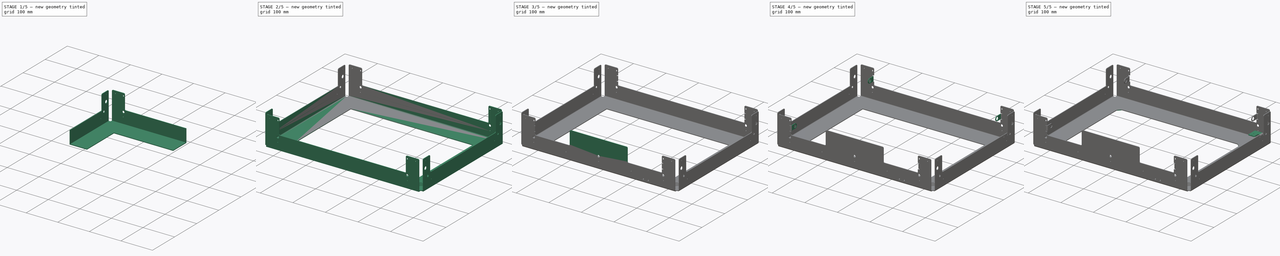
[diagram: build sequence overview — one tinted view per stage of 5, left to right]
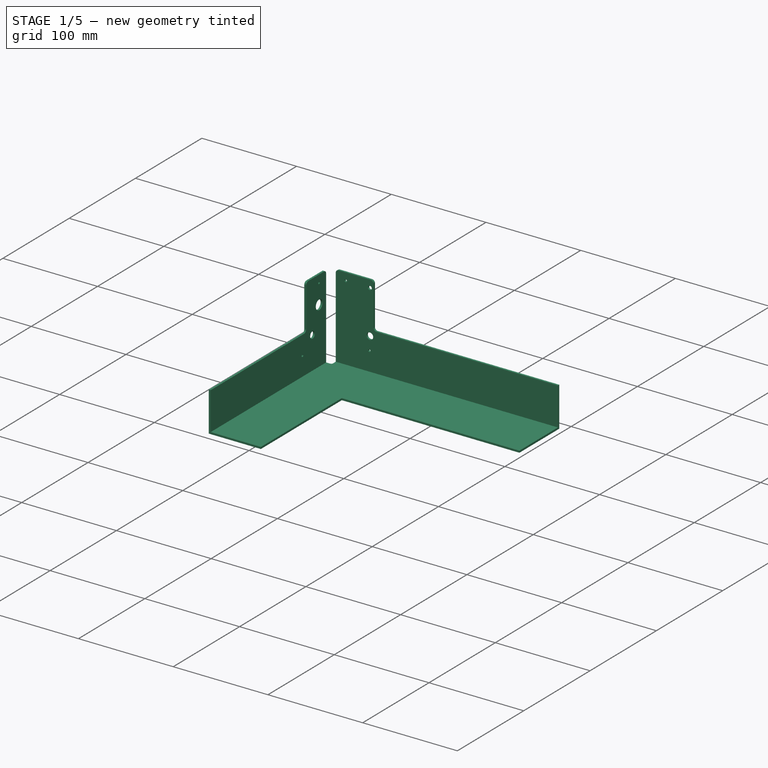
[diagram: stage 1 of 5 — iso view after this stage's code; geometry added in this stage tinted green]
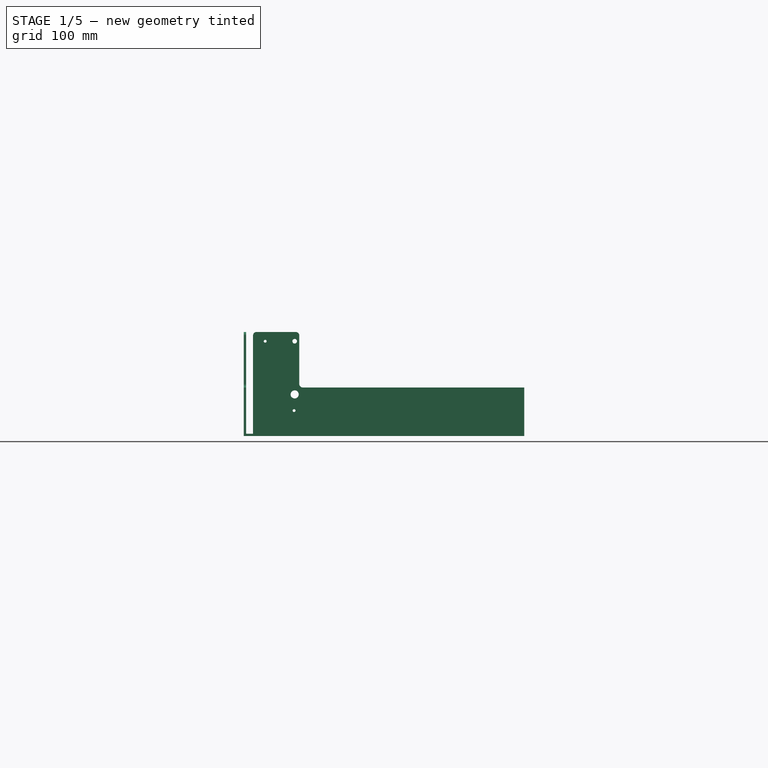
[diagram: stage 1 of 5 — front view after this stage's code; geometry added in this stage tinted green]
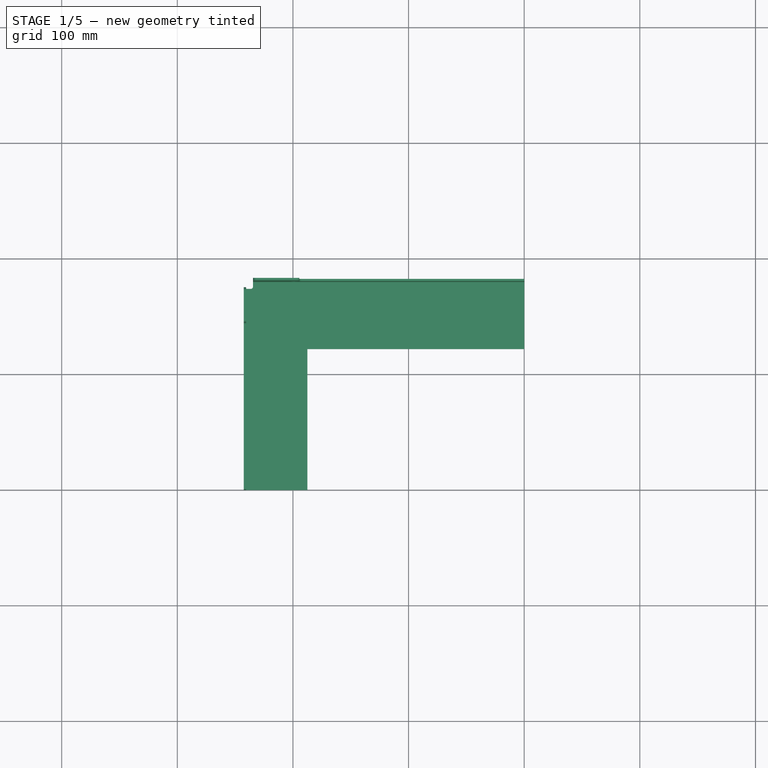
[diagram: stage 1 of 5 — top view after this stage's code; geometry added in this stage tinted green]
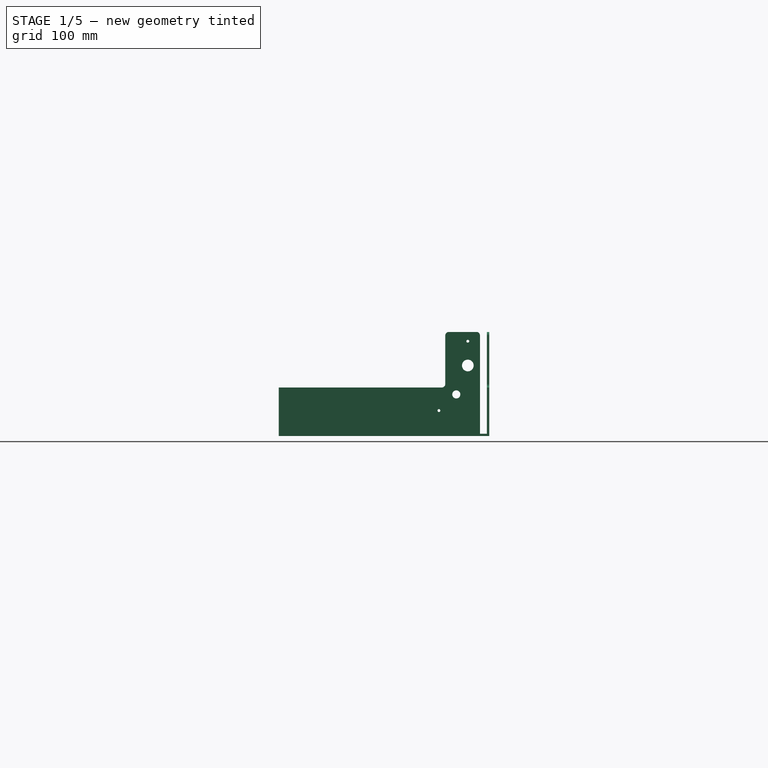
[diagram: stage 1 of 5 — right view after this stage's code; geometry added in this stage tinted green]
FCSTD DOCUMENT  (FreeCAD 0.14R3310 (Git))
Label: SOPORTE SUPERIOR COLUMNAS
License: CC-BY 3.0
LicenseURL: http://creativecommons.org/licenses/by/3.0/
objects: Sketcher::SketchObject×13, PartDesign::Fillet×11, PartDesign::Pad×7, PartDesign::Pocket×6, Part::Mirroring×2, Part::MultiFuse×2, PartDesign::Chamfer×1
note: 55 computed .brp shape members not serialized (recipe doc carries the construction recipe); baked Part::Feature solids carry a one-line shape summary decoded from their .brp

FEATURE [Sketcher::SketchObject] Sketch
  sketch-geometry (8):
    g0: LineSegment StartX=-242.5 StartY=182 StartZ=0 EndX=0 EndY=182 EndZ=0
    g1: LineSegment [constr] StartX=0 StartY=182 StartZ=0 EndX=0 EndY=0 EndZ=0
    g2: LineSegment [constr] StartX=0 StartY=0 StartZ=0 EndX=-242.5 EndY=0 EndZ=0
    g3: LineSegment StartX=-242.5 StartY=0 StartZ=0 EndX=-242.5 EndY=182 EndZ=0
    g4: LineSegment StartX=-187.5 StartY=122 StartZ=0 EndX=0 EndY=122 EndZ=0
    g5: LineSegment StartX=-187.5 StartY=122 StartZ=0 EndX=-187.5 EndY=0 EndZ=0
    g6: LineSegment StartX=0 StartY=122 StartZ=0 EndX=0 EndY=182 EndZ=0
    g7: LineSegment StartX=-187.5 StartY=0 StartZ=0 EndX=-242.5 EndY=0 EndZ=0
  constraints (22):
    c: Coincident(g0,g1)
    c: Coincident(g1,g2)
    c: Coincident(g2,g3)
    c: Coincident(g3,g0)
    c: Horizontal(g0)
    c: Horizontal(g2)
    c: Vertical(g1)
    c: Vertical(g3)
    c: Coincident(g1,g-1)
    c: Distance(g0) = 242.5
    c: DistanceY(g3) = 182
    c: PointOnObject(g4,g1)
    c: Horizontal(g4)
    c: Coincident(g5,g4)
    c: PointOnObject(g5,g2)
    c: Vertical(g5)
    c: DistanceX(g4) = 187.5
    c: DistanceY(g5) = -122
    c: Coincident(g6,g4)
    c: Coincident(g6,g0)
    c: Coincident(g7,g5)
    c: Coincident(g7,g2)
FEATURE [PartDesign::Pad] Pad
  Length = 2
  Length2 = 100
  Sketch = -> Sketch
  Type = 0
FEATURE [Sketcher::SketchObject] Sketch001
  ExternalGeometry = -> [Pad]
  Placement = pos=(0,0,2) rot=(0,0,1;0rad)
  Support = -> Pad [Face8]
  sketch-geometry (4):
    g0: LineSegment StartX=-242.5 StartY=182 StartZ=0 EndX=-234.5 EndY=182 EndZ=0
    g1: LineSegment StartX=-234.5 StartY=182 StartZ=0 EndX=-234.5 EndY=174 EndZ=0
    g2: LineSegment StartX=-234.5 StartY=174 StartZ=0 EndX=-242.5 EndY=174 EndZ=0
    g3: LineSegment StartX=-242.5 StartY=174 StartZ=0 EndX=-242.5 EndY=182 EndZ=0
  constraints (11):
    c: Coincident(g0,g1)
    c: Coincident(g1,g2)
    c: Coincident(g2,g3)
    c: Coincident(g3,g0)
    c: Horizontal(g0)
    c: Horizontal(g2)
    c: Vertical(g1)
    c: Vertical(g3)
    c: Coincident(g0,g-3)
    c: DistanceY(g1) = -8
    c: DistanceX(g2) = -8
FEATURE [PartDesign::Pocket] Pocket
  Length = 5
  Sketch = -> Sketch001
  Type = 1
FEATURE [PartDesign::Fillet] Fillet
  Base = -> Pocket [Edge23]
  Radius = 2
FEATURE [Sketcher::SketchObject] Sketch002
  ExternalGeometry = -> [Fillet]
  Placement = pos=(-242.5,0,0) rot=(0.57735,-0.57735,-0.57735;2.0944rad)
  Support = -> Fillet [Face4]
  sketch-geometry (10):
    g0: LineSegment StartX=-174 StartY=0 StartZ=0 EndX=-174 EndY=90 EndZ=0
    g1: LineSegment StartX=-174 StartY=90 StartZ=0 EndX=-144 EndY=90 EndZ=0
    g2: LineSegment StartX=-144 StartY=90 StartZ=0 EndX=-144 EndY=42 EndZ=0
    g3: LineSegment StartX=-144 StartY=42 StartZ=0 EndX=0 EndY=42 EndZ=0
    g4: LineSegment StartX=0 StartY=0 StartZ=0 EndX=0 EndY=42 EndZ=0
    g5: LineSegment StartX=0 StartY=0 StartZ=0 EndX=-174 EndY=0 EndZ=0
    g6: Circle CenterX=-163.5 CenterY=82 CenterZ=0 NormalX=0 NormalY=0 NormalZ=1 Radius=1.23
    g7: Circle CenterX=-163.5 CenterY=61 CenterZ=0 NormalX=0 NormalY=0 NormalZ=1 Radius=5.05
    g8: Circle CenterX=-153.5 CenterY=36 CenterZ=0 NormalX=0 NormalY=0 NormalZ=1 Radius=3.5
    g9: Circle CenterX=-138.5 CenterY=22 CenterZ=0 NormalX=0 NormalY=0 NormalZ=1 Radius=1.23
  constraints (28):
    c: Coincident(g0,g-3)
    c: Vertical(g0)
    c: DistanceY(g0) = 90
    c: Coincident(g1,g0)
    c: Horizontal(g1)
    c: DistanceX(g1) = 30
    c: Coincident(g2,g1)
    c: Vertical(g2)
    c: DistanceY(g2) = -48
    c: Coincident(g3,g2)
    c: PointOnObject(g3,g-2)
    c: Horizontal(g3)
    c: Coincident(g4,g-1)
    c: Coincident(g4,g3)
    c: Coincident(g5,g-1)
    c: Coincident(g5,g0)
    c: Equal(g6,g9)
    c: Radius(g6) = 1.23
    c: Distance(g6,g5) = 82
    c: Distance(g6,g2) = 19.5
    c: Distance(g7,g2) = 19.5
    c: Radius(g7) = 5.05
    c: Distance(g7,g5) = 61
    c: Distance(g8,g5) = 36
    c: Radius(g8) = 3.5
    c: Distance(g8,g2) = 9.5
    c: Distance(g9,g2) = 5.5
    c: Distance(g9,g5) = 22
FEATURE [PartDesign::Pad] Pad001
  Length = 2
  Length2 = 100
  Reversed = true
  Sketch = -> Sketch002
  Type = 0
FEATURE [Sketcher::SketchObject] Sketch003
  ExternalGeometry = -> [Pad001]
  Placement = pos=(0,182,0) rot=(0,0.707107,0.707107;3.14159rad)
  Support = -> Pad001 [Face12]
  sketch-geometry (10):
    g0: LineSegment StartX=234.5 StartY=0 StartZ=0 EndX=234.5 EndY=90 EndZ=0
    g1: LineSegment StartX=234.5 StartY=90 StartZ=0 EndX=194.5 EndY=90 EndZ=0
    g2: LineSegment StartX=194.5 StartY=90 StartZ=0 EndX=194.5 EndY=42 EndZ=0
    g3: LineSegment StartX=194.5 StartY=42 StartZ=0 EndX=0 EndY=42 EndZ=0
    g4: LineSegment StartX=0 StartY=42 StartZ=0 EndX=0 EndY=0 EndZ=0
    g5: LineSegment StartX=0 StartY=0 StartZ=0 EndX=234.5 EndY=0 EndZ=0
    g6: Circle CenterX=199 CenterY=22 CenterZ=0 NormalX=0 NormalY=0 NormalZ=1 Radius=1.23
    g7: Circle CenterX=198.5 CenterY=36 CenterZ=0 NormalX=0 NormalY=0 NormalZ=1 Radius=3.5
    g8: Circle CenterX=224 CenterY=82 CenterZ=0 NormalX=0 NormalY=0 NormalZ=1 Radius=1.23
    g9: Circle CenterX=198.5 CenterY=82 CenterZ=0 NormalX=0 NormalY=0 NormalZ=1 Radius=2
  constraints (28):
    c: Coincident(g0,g-3)
    c: Vertical(g0)
    c: DistanceY(g0) = 90
    c: Coincident(g1,g0)
    c: Horizontal(g1)
    c: Distance(g1) = 40
    c: Vertical(g2)
    c: Distance(g2) = 48
    c: Coincident(g2,g1)
    c: Coincident(g3,g2)
    c: PointOnObject(g3,g-2)
    c: Horizontal(g3)
    c: Coincident(g4,g3)
    c: Coincident(g4,g-1)
    c: Coincident(g5,g-1)
    c: Coincident(g5,g0)
    c: Distance(g9,g2) = 4
    c: Radius(g9) = 2
    c: Distance(g9,g1) = 8
    c: Distance(g8,g1) = 8
    c: Radius(g8) = 1.23
    c: Distance(g8,g0) = 10.5
    c: Radius(g7) = 3.5
    c: Distance(g7,g0) = 36
    c: Distance(g7,g3) = 6
    c: Distance(g6,g3) = 20
    c: Equal(g6,g8)
    c: Distance(g6,g0) = 35.5
FEATURE [PartDesign::Pad] Pad002
  Length = 2
  Length2 = 100
  Reversed = true
  Sketch = -> Sketch003
  Type = 0
FEATURE [PartDesign::Fillet] Fillet001
  Base = -> Pad002 [Edge59,Edge57,Edge56,Edge1,Edge10,Edge2]
  Radius = 3
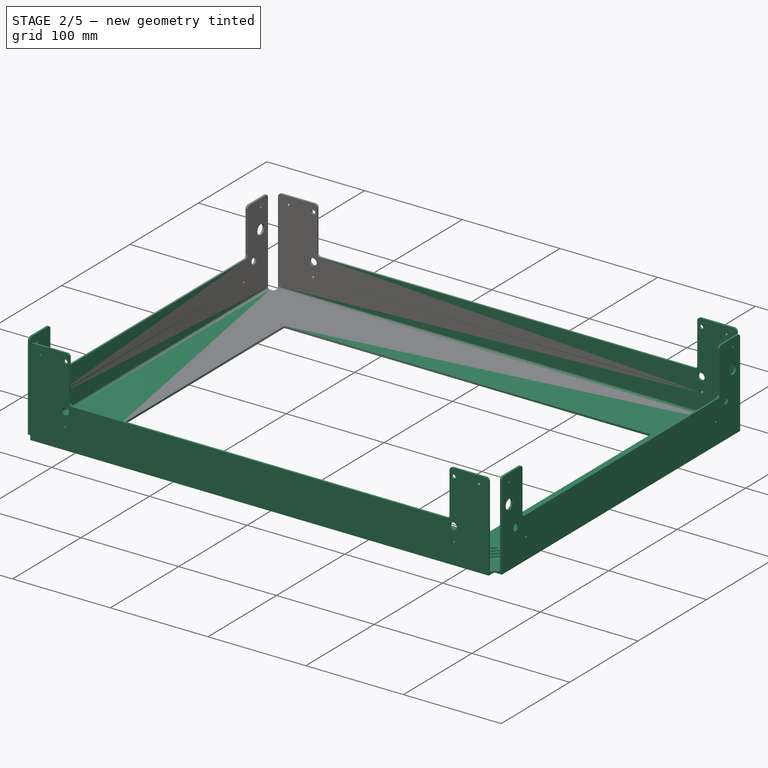
[diagram: stage 2 of 5 — iso view after this stage's code; geometry added in this stage tinted green]
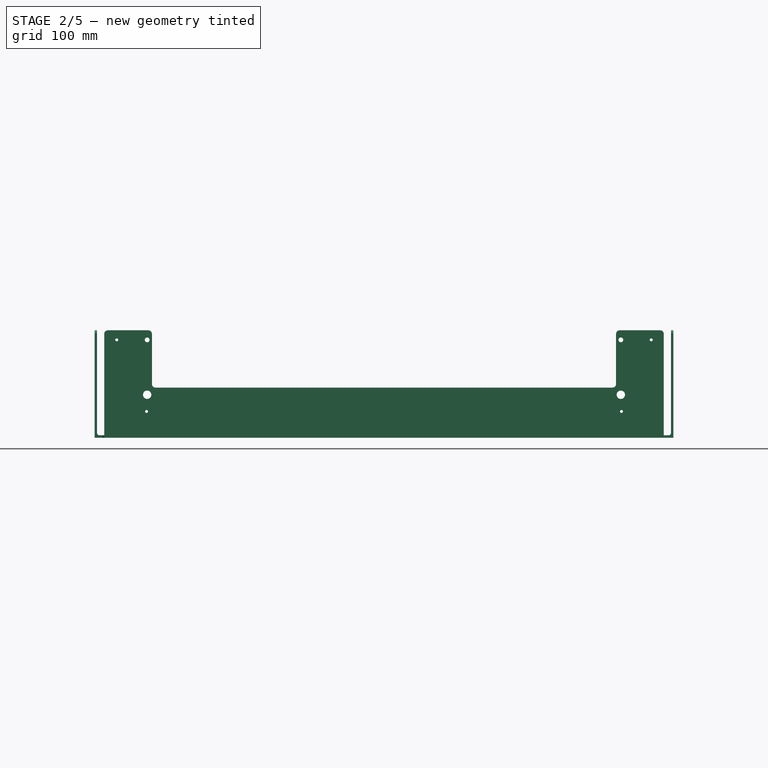
[diagram: stage 2 of 5 — front view after this stage's code; geometry added in this stage tinted green]
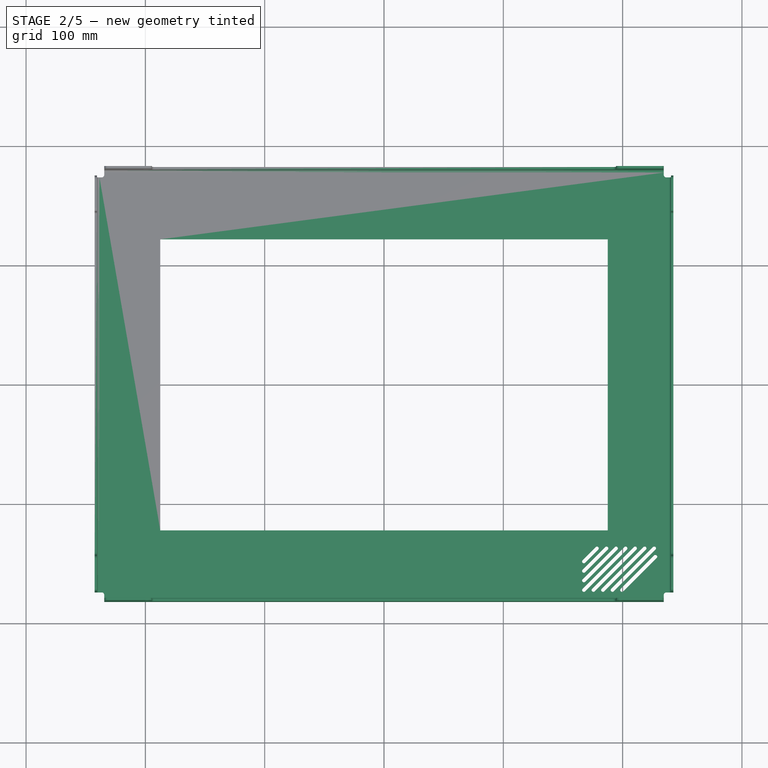
[diagram: stage 2 of 5 — top view after this stage's code; geometry added in this stage tinted green]
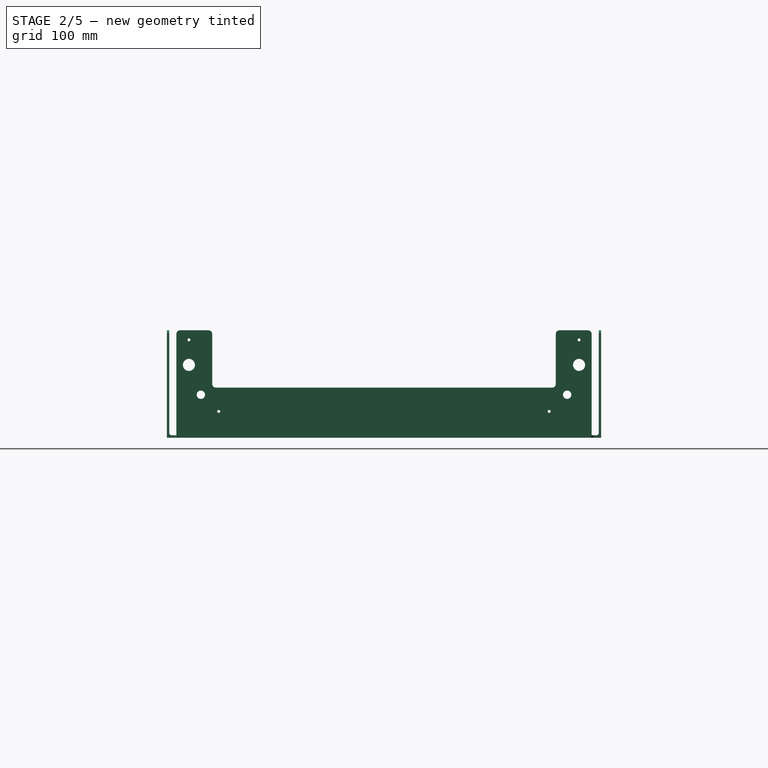
[diagram: stage 2 of 5 — right view after this stage's code; geometry added in this stage tinted green]
FEATURE [Part::Mirroring] Part__Mirroring  label="Fillet001 (Mirror #1)"
  Base = (0,0,0)
  Normal = (1,0,0)
  Source = -> Fillet001
FEATURE [Part::MultiFuse] Fusion
  Shapes = -> [Fillet001,Part__Mirroring]
FEATURE [Part::Mirroring] Part__Mirroring001  label="Fusion (Mirror #2)"
  Base = (0,0,0)
  Normal = (0,1,0)
  Source = -> Fusion
FEATURE [Part::MultiFuse] Fusion001
  Shapes = -> [Fusion,Part__Mirroring001]
FEATURE [Sketcher::SketchObject] Sketch004
  ExternalGeometry = -> [Fusion001]
  Placement = pos=(0,0,2) rot=(0,0,1;0rad)
  Support = -> Fusion001 [Face90]
  sketch-geometry (36):
    g0: LineSegment [constr] StartX=167.5 StartY=-137 StartZ=0 EndX=227.5 EndY=-137 EndZ=0
    g1: LineSegment [constr] StartX=227.5 StartY=-137 StartZ=0 EndX=227.5 EndY=-172 EndZ=0
    g2: LineSegment [constr] StartX=227.5 StartY=-172 StartZ=0 EndX=167.5 EndY=-172 EndZ=0
    g3: LineSegment [constr] StartX=167.5 StartY=-172 StartZ=0 EndX=167.5 EndY=-137 EndZ=0
    g4: LineSegment StartX=168.561 StartY=-165.061 StartZ=0 EndX=195.561 EndY=-138.061 EndZ=0
    g5: LineSegment StartX=168.561 StartY=-173.061 StartZ=0 EndX=203.561 EndY=-138.061 EndZ=0
    g6: LineSegment StartX=166.439 StartY=-170.939 StartZ=0 EndX=201.439 EndY=-135.939 EndZ=0
    g7: LineSegment StartX=174.439 StartY=-170.939 StartZ=0 EndX=209.439 EndY=-135.939 EndZ=0
    g8: LineSegment StartX=176.561 StartY=-173.061 StartZ=0 EndX=211.561 EndY=-138.061 EndZ=0
    g9: LineSegment StartX=182.439 StartY=-170.939 StartZ=0 EndX=217.439 EndY=-135.939 EndZ=0
    g10: LineSegment StartX=184.561 StartY=-173.061 StartZ=0 EndX=219.561 EndY=-138.061 EndZ=0
    g11: LineSegment StartX=190.439 StartY=-170.939 StartZ=0 EndX=225.439 EndY=-135.939 EndZ=0
    g12: LineSegment StartX=166.439 StartY=-162.939 StartZ=0 EndX=193.439 EndY=-135.939 EndZ=0
    g13: LineSegment StartX=168.561 StartY=-157.061 StartZ=0 EndX=187.561 EndY=-138.061 EndZ=0
    g14: LineSegment StartX=166.439 StartY=-154.939 StartZ=0 EndX=185.439 EndY=-135.939 EndZ=0
    g15: LineSegment StartX=192.561 StartY=-173.061 StartZ=0 EndX=227.561 EndY=-138.061 EndZ=0
    g16: LineSegment StartX=198.439 StartY=-170.939 StartZ=0 EndX=226.439 EndY=-142.939 EndZ=0
    g17: LineSegment StartX=200.561 StartY=-173.061 StartZ=0 EndX=228.561 EndY=-145.061 EndZ=0
    g18: ArcOfCircle CenterX=167.5 CenterY=-172 CenterZ=0 NormalX=0 NormalY=0 NormalZ=1 Radius=1.5 StartAngle=2.35619 EndAngle=5.49779
    g19: ArcOfCircle CenterX=202.5 CenterY=-137 CenterZ=0 NormalX=0 NormalY=0 NormalZ=1 Radius=1.5 StartAngle=5.49779 EndAngle=8.63938
    g20: ArcOfCircle CenterX=194.5 CenterY=-137 CenterZ=0 NormalX=0 NormalY=0 NormalZ=1 Radius=1.5 StartAngle=5.49779 EndAngle=8.63938
    g21: ArcOfCircle CenterX=167.5 CenterY=-164 CenterZ=0 NormalX=0 NormalY=0 NormalZ=1 Radius=1.5 StartAngle=2.35619 EndAngle=5.49779
    g22: ArcOfCircle CenterX=186.5 CenterY=-137 CenterZ=0 NormalX=0 NormalY=0 NormalZ=1 Radius=1.5 StartAngle=5.49779 EndAngle=8.63938
    g23: ArcOfCircle CenterX=167.5 CenterY=-156 CenterZ=0 NormalX=0 NormalY=0 NormalZ=1 Radius=1.5 StartAngle=2.3562 EndAngle=5.49779
    g24: ArcOfCircle CenterX=210.5 CenterY=-137 CenterZ=0 NormalX=0 NormalY=0 NormalZ=1 Radius=1.5 StartAngle=5.49779 EndAngle=8.63938
    g25: ArcOfCircle CenterX=175.5 CenterY=-172 CenterZ=0 NormalX=0 NormalY=0 NormalZ=1 Radius=1.5 StartAngle=2.35619 EndAngle=5.49779
    g26: ArcOfCircle CenterX=218.5 CenterY=-137 CenterZ=0 NormalX=0 NormalY=0 NormalZ=1 Radius=1.5 StartAngle=5.49779 EndAngle=8.63938
    g27: ArcOfCircle CenterX=226.5 CenterY=-137 CenterZ=0 NormalX=0 NormalY=0 NormalZ=1 Radius=1.5 StartAngle=5.49779 EndAngle=8.63938
    g28: ArcOfCircle CenterX=183.5 CenterY=-172 CenterZ=0 NormalX=0 NormalY=0 NormalZ=1 Radius=1.5 StartAngle=2.35619 EndAngle=5.49779
    g29: ArcOfCircle CenterX=191.5 CenterY=-172 CenterZ=0 NormalX=0 NormalY=0 NormalZ=1 Radius=1.5 StartAngle=2.3562 EndAngle=5.49779
    g30: ArcOfCircle CenterX=199.5 CenterY=-172 CenterZ=0 NormalX=0 NormalY=0 NormalZ=1 Radius=1.5 StartAngle=2.35619 EndAngle=5.49779
    g31: ArcOfCircle CenterX=227.5 CenterY=-144 CenterZ=0 NormalX=0 NormalY=0 NormalZ=1 Radius=1.5 StartAngle=5.49779 EndAngle=8.63938
    g32: LineSegment StartX=179.561 StartY=-138.061 StartZ=0 EndX=168.561 EndY=-149.061 EndZ=0
    g33: LineSegment StartX=177.439 StartY=-135.939 StartZ=0 EndX=166.439 EndY=-146.939 EndZ=0
    g34: ArcOfCircle CenterX=178.5 CenterY=-137 CenterZ=0 NormalX=0 NormalY=0 NormalZ=1 Radius=1.5 StartAngle=5.49778 EndAngle=8.63938
    g35: ArcOfCircle CenterX=167.5 CenterY=-148 CenterZ=0 NormalX=0 NormalY=0 NormalZ=1 Radius=1.5 StartAngle=2.35619 EndAngle=5.49779
  constraints (123):
    c: Coincident(g0,g1)
    c: Coincident(g1,g2)
    c: Coincident(g2,g3)
    c: Coincident(g3,g0)
    c: Horizontal(g0)
    c: Horizontal(g2)
    c: Vertical(g1)
    c: Vertical(g3)
    c: Distance(g0,g-3) = 15
    c: Distance(g0) = 60
    c: Distance(g0,g-4) = 15
    c: Distance(g2,g-5) = 10
    c: Angle(g2,g5) = 0.785398
    c: Parallel(g5,g6)
    c: Parallel(g6,g4)
    c: Parallel(g4,g12)
    c: Parallel(g13,g14)
    c: Parallel(g14,g12)
    c: Parallel(g7,g8)
    c: Parallel(g8,g10)
    c: Parallel(g10,g9)
    c: Parallel(g9,g11)
    c: Parallel(g11,g15)
    c: Parallel(g15,g16)
    c: Parallel(g16,g17)
    c: Parallel(g17,g5)
    c: Coincident(g18,g2)
    c: Coincident(g5,g18)
    c: Tangent(g5,g18)
    c: Coincident(g6,g18)
    c: Tangent(g6,g18)
    c: Radius(g18) = 1.5
    c: PointOnObject(g19,g0)
    c: Tangent(g19,g5)
    c: Coincident(g19,g5)
    c: Tangent(g19,g6)
    c: Coincident(g19,g6)
    c: PointOnObject(g20,g0)
    c: Equal(g20,g19)
    c: Coincident(g20,g4)
    c: Tangent(g20,g4)
    c: Coincident(g12,g20)
    c: Tangent(g20,g12)
    c: PointOnObject(g21,g3)
    c: Coincident(g4,g21)
    c: Tangent(g21,g4)
    c: Coincident(g21,g12)
    c: Tangent(g12,g21)
    c: Distance(g20,g19) = 8
    c: PointOnObject(g22,g0)
    c: Coincident(g22,g13)
    c: Tangent(g22,g13)
    c: Coincident(g14,g22)
    c: Tangent(g14,g22)
    c: Distance(g20,g22) = 8
    c: PointOnObject(g23,g3)
    c: Coincident(g23,g13)
    c: Tangent(g23,g13)
    c: Tangent(g23,g14)
    c: Coincident(g23,g14)
    c: PointOnObject(g24,g0)
    c: Equal(g21,g23)
    c: Equal(g19,g24)
    c: Coincident(g7,g24)
    c: Tangent(g24,g7)
    c: Coincident(g24,g8)
    c: Tangent(g24,g8)
    c: Distance(g24,g19) = 8
    c: PointOnObject(g25,g2)
    c: Coincident(g7,g25)
    c: Coincident(g25,g8)
    c: Tangent(g25,g8)
    c: Tangent(g25,g7)
    c: PointOnObject(g26,g0)
    c: Distance(g26,g24) = 8
    c: Tangent(g26,g10)
    c: Tangent(g26,g9)
    c: Coincident(g9,g26)
    c: Coincident(g26,g10)
    c: PointOnObject(g27,g0)
    c: Equal(g26,g24)
    c: Tangent(g27,g15)
    c: Tangent(g11,g27)
    c: Coincident(g27,g11)
    c: Coincident(g27,g15)
    c: Equal(g27,g26)
    c: Distance(g27,g26) = 8
    c: PointOnObject(g28,g2)
    c: Coincident(g28,g9)
    c: Tangent(g9,g28)
    c: Tangent(g10,g28)
    c: Coincident(g28,g10)
    c: PointOnObject(g29,g2)
    c: Coincident(g29,g11)
    c: Tangent(g11,g29)
    c: Tangent(g15,g29)
    c: Coincident(g29,g15)
    c: PointOnObject(g30,g2)
    c: Coincident(g16,g30)
    c: Tangent(g30,g16)
    c: Coincident(g30,g17)
    c: Tangent(g17,g30)
    c: Distance(g30,g29) = 8
    c: Equal(g29,g30)
    c: PointOnObject(g31,g1)
    c: Tangent(g16,g31)
    c: Tangent(g31,g17)
    c: Coincident(g16,g31)
    c: Coincident(g31,g17)
    c: Parallel(g33,g32)
    c: Parallel(g32,g14)
    c: PointOnObject(g34,g0)
    c: PointOnObject(g35,g3)
    c: Coincident(g35,g32)
    c: Tangent(g32,g35)
    c: Tangent(g33,g35)
    c: Coincident(g33,g35)
    c: Coincident(g33,g34)
    c: Tangent(g34,g33)
    c: Coincident(g34,g32)
    c: Equal(g34,g22)
    c: Distance(g34,g22) = 8
    c: Tangent(g34,g32)
FEATURE [PartDesign::Pocket] Pocket001
  Length = 5
  Sketch = -> Sketch004
  Type = 1
FEATURE [PartDesign::Fillet] Fillet002
  Base = -> Pocket001 [Edge40,Edge128,Edge122,Edge129]
  Radius = 2
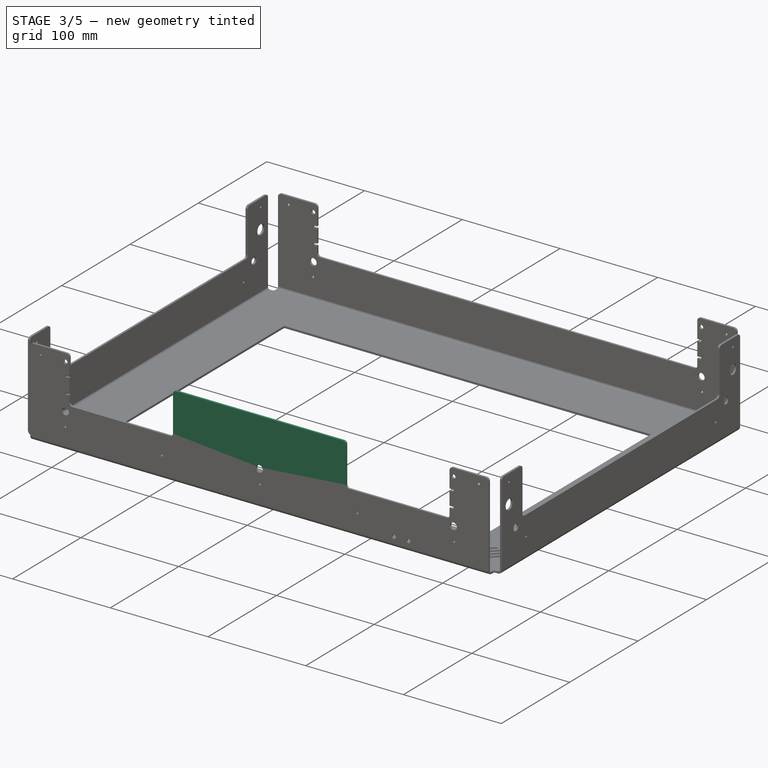
[diagram: stage 3 of 5 — iso view after this stage's code; geometry added in this stage tinted green]
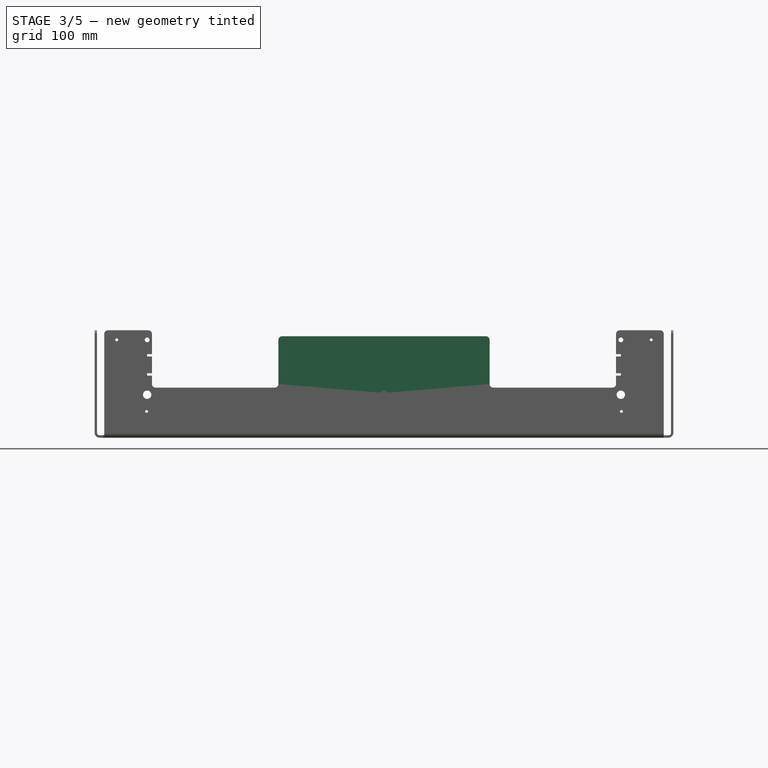
[diagram: stage 3 of 5 — front view after this stage's code; geometry added in this stage tinted green]
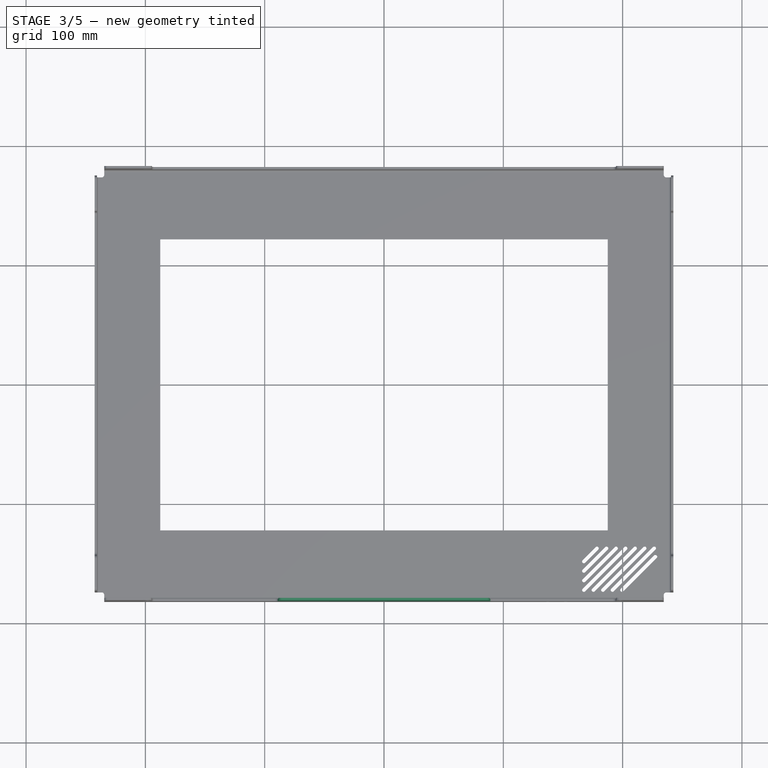
[diagram: stage 3 of 5 — top view after this stage's code; geometry added in this stage tinted green]
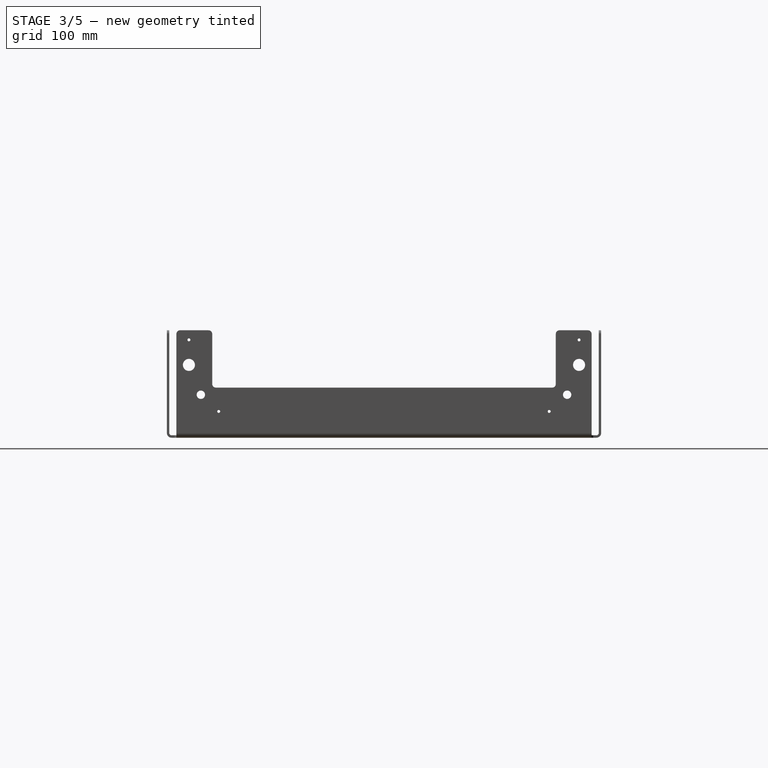
[diagram: stage 3 of 5 — right view after this stage's code; geometry added in this stage tinted green]
FEATURE [PartDesign::Fillet] Fillet003
  Base = -> Fillet002 [Edge122,Edge129,Edge128,Edge136]
  Radius = 4
FEATURE [Sketcher::SketchObject] Sketch005
  ExternalGeometry = -> [Fillet003]
  Placement = pos=(0,-182,0) rot=(1,0,0;1.5708rad)
  Support = -> Fillet003 [Face80]
  sketch-geometry (4):
    g0: LineSegment StartX=-88.5 StartY=85 StartZ=0 EndX=88.5 EndY=85 EndZ=0
    g1: LineSegment StartX=-88.5 StartY=85 StartZ=0 EndX=-88.5 EndY=42 EndZ=0
    g2: LineSegment StartX=88.5 StartY=85 StartZ=0 EndX=88.5 EndY=42 EndZ=0
    g3: LineSegment StartX=88.5 StartY=42 StartZ=0 EndX=-88.5 EndY=42 EndZ=0
  constraints (12):
    c: Horizontal(g0)
    c: Distance(g-3,g0) = 43
    c: Symmetric(g0,g0,g-2)
    c: DistanceX(g0) = 177
    c: Coincident(g1,g0)
    c: PointOnObject(g1,g-3)
    c: Vertical(g1)
    c: Coincident(g2,g0)
    c: PointOnObject(g2,g-3)
    c: Vertical(g2)
    c: Coincident(g3,g2)
    c: Coincident(g3,g1)
FEATURE [PartDesign::Pad] Pad003
  Length = 2
  Length2 = 100
  Reversed = true
  Sketch = -> Sketch005
  Type = 0
FEATURE [PartDesign::Fillet] Fillet004
  Base = -> Pad003 [Edge46,Edge38,Edge37,Edge43]
  Radius = 3
FEATURE [Sketcher::SketchObject] Sketch006
  ExternalGeometry = -> [Fillet004]
  Placement = pos=(0,-182,0) rot=(1,0,0;1.5708rad)
  Support = -> Fillet004 [Face2]
  sketch-geometry (6):
    g0: Circle CenterX=-100 CenterY=22 CenterZ=0 NormalX=0 NormalY=0 NormalZ=1 Radius=1.23
    g1: Circle CenterX=100 CenterY=22 CenterZ=0 NormalX=0 NormalY=0 NormalZ=1 Radius=1.23
    g2: Circle CenterX=0 CenterY=36 CenterZ=0 NormalX=0 NormalY=0 NormalZ=1 Radius=3.5
    g3: Circle CenterX=0 CenterY=22 CenterZ=0 NormalX=0 NormalY=0 NormalZ=1 Radius=1.23
    g4: Circle CenterX=137.5 CenterY=10 CenterZ=0 NormalX=0 NormalY=0 NormalZ=1 Radius=1.95
    g5: Circle CenterX=152.5 CenterY=10 CenterZ=0 NormalX=0 NormalY=0 NormalZ=1 Radius=1.95
  constraints (17):
    c: Distance(g0,g-3) = 134.5
    c: Distance(g0,g-4) = 20
    c: Radius(g0) = 1.23
    c: Equal(g1,g0)
    c: Symmetric(g1,g0,g-2)
    c: PointOnObject(g2,g-2)
    c: PointOnObject(g3,g-2)
    c: Equal(g3,g1)
    c: DistanceY(g-1,g3) = 22
    c: DistanceY(g-1,g2) = 36
    c: Radius(g2) = 3.5
    c: Distance(g5,g4) = 15
    c: Distance(g4,g-5) = 32
    c: Distance(g5,g-5) = 32
    c: Equal(g4,g5)
    c: Radius(g5) = 1.95
    c: Distance(g4,g-6) = 49
FEATURE [PartDesign::Pocket] Pocket002
  Length = 5
  Sketch = -> Sketch006
  Type = 0
FEATURE [Sketcher::SketchObject] Sketch007
  ExternalGeometry = -> [Pocket002]
  Placement = pos=(0,-182,0) rot=(1,0,0;1.5708rad)
  Support = -> Pocket002 [Face2]
  sketch-geometry (17):
    g0: LineSegment StartX=-194.5 StartY=70 StartZ=0 EndX=-198.5 EndY=70 EndZ=0
    g1: LineSegment [constr] StartX=-198.5 StartY=70 StartZ=0 EndX=-198.5 EndY=52 EndZ=0
    g2: LineSegment StartX=-198.5 StartY=52 StartZ=0 EndX=-194.5 EndY=52 EndZ=0
    g3: LineSegment StartX=-194.5 StartY=68 StartZ=0 EndX=-198.5 EndY=68 EndZ=0
    g4: LineSegment StartX=-194.5 StartY=54 StartZ=0 EndX=-198.5 EndY=54 EndZ=0
    g5: LineSegment StartX=-198.5 StartY=54 StartZ=0 EndX=-198.5 EndY=52 EndZ=0
    g6: LineSegment StartX=-194.5 StartY=54 StartZ=0 EndX=-194.5 EndY=52 EndZ=0
    g7: LineSegment StartX=-194.5 StartY=68 StartZ=0 EndX=-194.5 EndY=70 EndZ=0
    g8: LineSegment StartX=-198.5 StartY=68 StartZ=0 EndX=-198.5 EndY=70 EndZ=0
    g9: LineSegment StartX=194.5 StartY=70 StartZ=0 EndX=198.5 EndY=70 EndZ=0
    g10: LineSegment StartX=198.5 StartY=70 StartZ=0 EndX=198.5 EndY=68 EndZ=0
    g11: LineSegment StartX=198.5 StartY=68 StartZ=0 EndX=194.5 EndY=68 EndZ=0
    g12: LineSegment StartX=194.5 StartY=68 StartZ=0 EndX=194.5 EndY=70 EndZ=0
    g13: LineSegment StartX=194.5 StartY=54 StartZ=0 EndX=198.5 EndY=54 EndZ=0
    g14: LineSegment StartX=198.5 StartY=54 StartZ=0 EndX=198.5 EndY=52 EndZ=0
    g15: LineSegment StartX=198.5 StartY=52 StartZ=0 EndX=194.5 EndY=52 EndZ=0
    g16: LineSegment StartX=194.5 StartY=52 StartZ=0 EndX=194.5 EndY=54 EndZ=0
  constraints (46):
    c: Coincident(g0,g1)
    c: Coincident(g1,g2)
    c: Horizontal(g0)
    c: Horizontal(g2)
    c: Vertical(g1)
    c: Distance(g0,g-3) = 20
    c: PointOnObject(g0,g-4)
    c: PointOnObject(g2,g-4)
    c: DistanceY(g1) = -18
    c: PointOnObject(g3,g-4)
    c: Horizontal(g3)
    c: PointOnObject(g4,g-4)
    c: PointOnObject(g4,g1)
    c: Horizontal(g4)
    c: PointOnObject(g3,g1)
    c: DistanceX(g0) = -4
    c: Distance(g3,g4) = 14
    c: Distance(g3,g0) = 2
    c: Coincident(g5,g4)
    c: Coincident(g5,g1)
    c: Coincident(g6,g4)
    c: Coincident(g6,g2)
    c: Coincident(g7,g3)
    c: Coincident(g7,g0)
    c: Coincident(g8,g3)
    c: Coincident(g8,g0)
    c: Coincident(g9,g10)
    c: Coincident(g10,g11)
    c: Coincident(g11,g12)
    c: Coincident(g12,g9)
    c: Horizontal(g9)
    c: Horizontal(g11)
    c: Vertical(g10)
    c: Vertical(g12)
    c: Coincident(g13,g14)
    c: Coincident(g14,g15)
    c: Coincident(g15,g16)
    c: Coincident(g16,g13)
    c: Horizontal(g13)
    c: Horizontal(g15)
    c: Vertical(g14)
    c: Vertical(g16)
    c: Symmetric(g13,g4,g-2)
    c: Symmetric(g15,g2,g-2)
    c: Symmetric(g10,g3,g-2)
    c: Symmetric(g9,g0,g-2)
FEATURE [PartDesign::Pocket] Pocket003
  Length = 5
  Sketch = -> Sketch007
  Type = 1
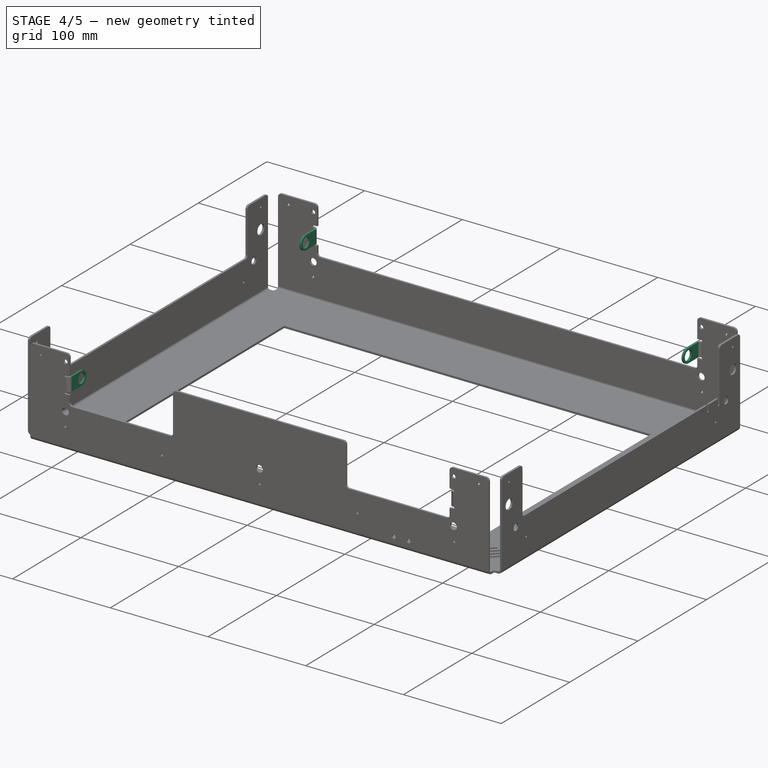
[diagram: stage 4 of 5 — iso view after this stage's code; geometry added in this stage tinted green]
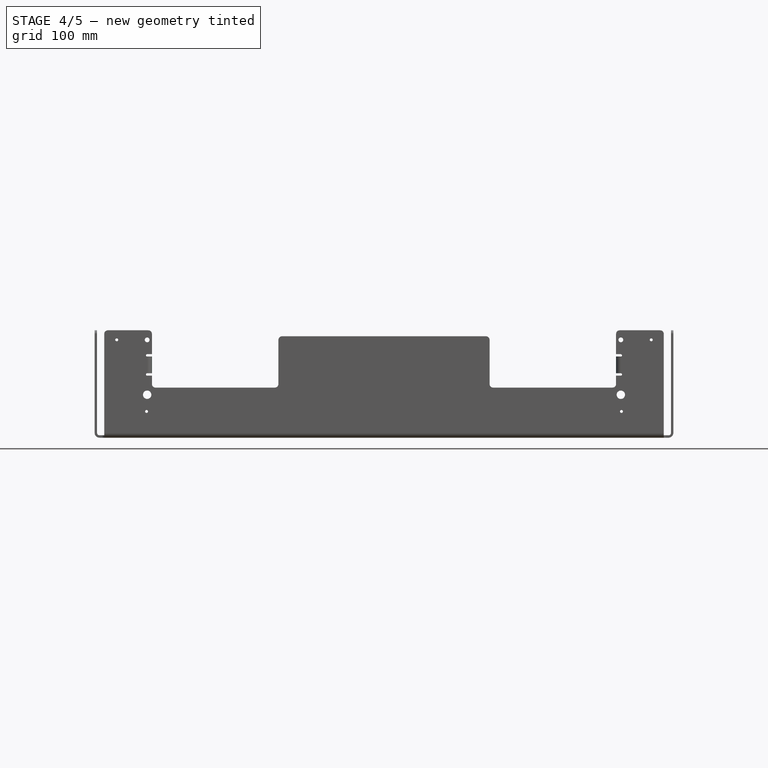
[diagram: stage 4 of 5 — front view after this stage's code; geometry added in this stage tinted green]
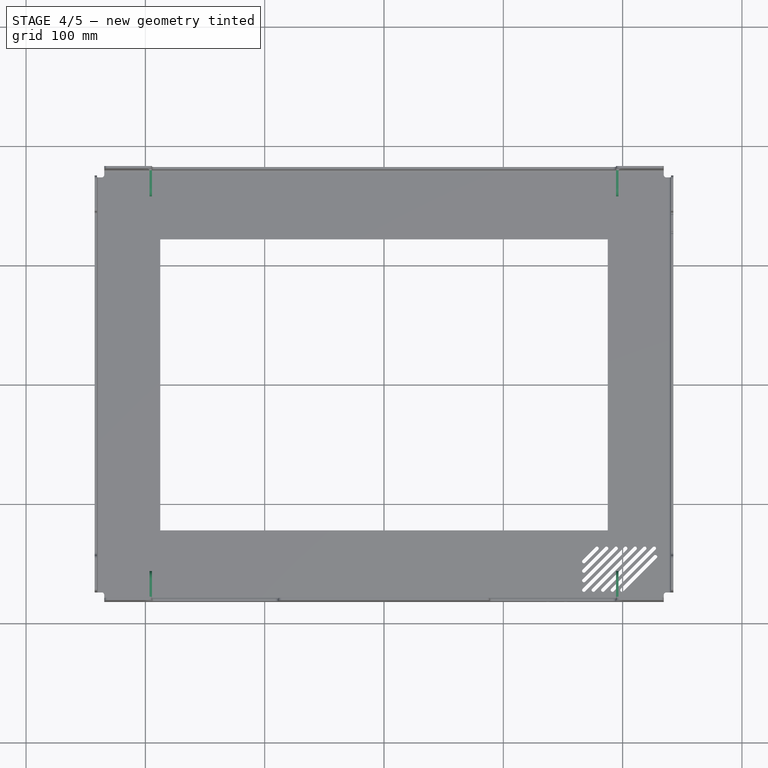
[diagram: stage 4 of 5 — top view after this stage's code; geometry added in this stage tinted green]
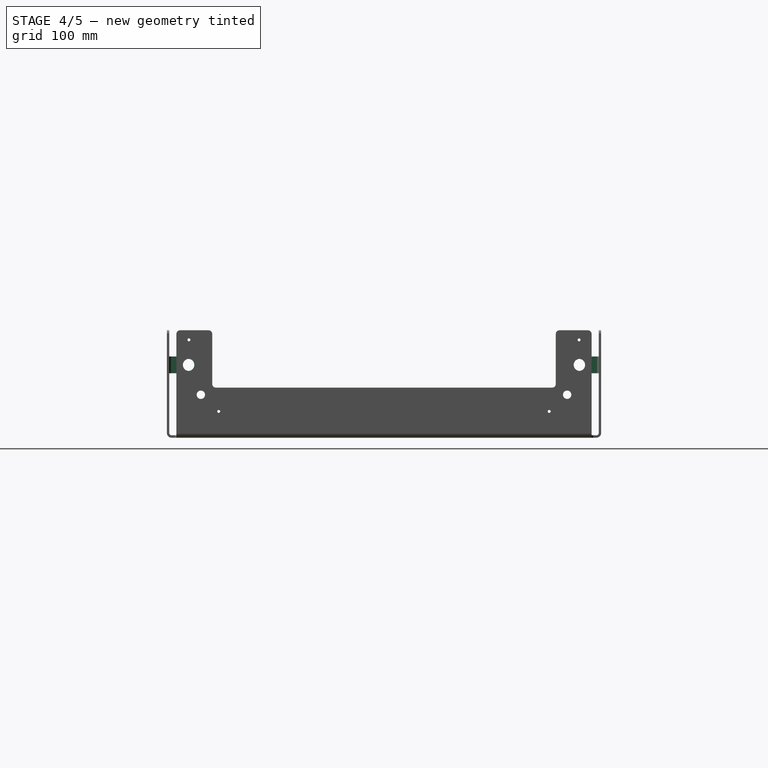
[diagram: stage 4 of 5 — right view after this stage's code; geometry added in this stage tinted green]
FEATURE [Sketcher::SketchObject] Sketch008
  ExternalGeometry = -> [Pocket003]
  Placement = pos=(0,-182,0) rot=(1,0,0;1.5708rad)
  Support = -> Pocket003 [Face2]
  sketch-geometry (8):
    g0: ArcOfCircle CenterX=-198.5 CenterY=69 CenterZ=0 NormalX=0 NormalY=0 NormalZ=1 Radius=1 StartAngle=1.5708 EndAngle=4.71239
    g1: LineSegment StartX=-198.5 StartY=68 StartZ=0 EndX=-198.5 EndY=70 EndZ=0
    g2: ArcOfCircle CenterX=-198.5 CenterY=53 CenterZ=0 NormalX=0 NormalY=0 NormalZ=1 Radius=1 StartAngle=1.5708 EndAngle=4.71239
    g3: LineSegment StartX=-198.5 StartY=52 StartZ=0 EndX=-198.5 EndY=54 EndZ=0
    g4: ArcOfCircle CenterX=198.5 CenterY=69 CenterZ=0 NormalX=0 NormalY=0 NormalZ=1 Radius=1 StartAngle=4.71239 EndAngle=7.85398
    g5: LineSegment StartX=198.5 StartY=68 StartZ=0 EndX=198.5 EndY=70 EndZ=0
    g6: LineSegment StartX=198.5 StartY=52 StartZ=0 EndX=198.5 EndY=54 EndZ=0
    g7: ArcOfCircle CenterX=198.5 CenterY=53 CenterZ=0 NormalX=0 NormalY=0 NormalZ=1 Radius=1 StartAngle=4.71239 EndAngle=7.85398
  constraints (24):
    c: Coincident(g0,g-3)
    c: Coincident(g0,g-3)
    c: Coincident(g1,g0)
    c: Vertical(g1)
    c: Coincident(g1,g0)
    c: PointOnObject(g0,g1)
    c: PointOnObject(g2,g-4)
    c: Coincident(g2,g-4)
    c: Coincident(g2,g-4)
    c: Coincident(g3,g2)
    c: Vertical(g3)
    c: Coincident(g3,g2)
    c: Coincident(g5,g4)
    c: Coincident(g5,g4)
    c: Vertical(g6)
    c: PointOnObject(g7,g6)
    c: Coincident(g7,g6)
    c: Coincident(g7,g6)
    c: Symmetric(g6,g2,g-2)
    c: Symmetric(g6,g2,g-2)
    c: Vertical(g5)
    c: Symmetric(g4,g0,g-2)
    c: PointOnObject(g4,g5)
    c: Symmetric(g4,g0,g-2)
FEATURE [PartDesign::Pocket] Pocket004
  Length = 5
  Sketch = -> Sketch008
  Type = 1
FEATURE [Sketcher::SketchObject] Sketch009
  ExternalGeometry = -> [Pocket004]
  Placement = pos=(-194.5,0,0) rot=(0.57735,0.57735,0.57735;2.0944rad)
  Support = -> Pocket004 [Face32]
  sketch-geometry (12):
    g0: LineSegment StartX=-182 StartY=68 StartZ=0 EndX=-164 EndY=68 EndZ=0
    g1: LineSegment [constr] StartX=-164 StartY=68 StartZ=0 EndX=-164 EndY=54 EndZ=0
    g2: LineSegment StartX=-164 StartY=54 StartZ=0 EndX=-182 EndY=54 EndZ=0
    g3: LineSegment StartX=-182 StartY=54 StartZ=0 EndX=-182 EndY=68 EndZ=0
    g4: LineSegment StartX=164 StartY=68 StartZ=0 EndX=182 EndY=68 EndZ=0
    g5: LineSegment StartX=182 StartY=68 StartZ=0 EndX=182 EndY=54 EndZ=0
    g6: LineSegment StartX=182 StartY=54 StartZ=0 EndX=164 EndY=54 EndZ=0
    g7: LineSegment [constr] StartX=164 StartY=54 StartZ=0 EndX=164 EndY=68 EndZ=0
    g8: ArcOfCircle CenterX=-164 CenterY=61 CenterZ=0 NormalX=0 NormalY=0 NormalZ=1 Radius=7 StartAngle=4.71239 EndAngle=7.85398
    g9: ArcOfCircle CenterX=164 CenterY=61 CenterZ=0 NormalX=0 NormalY=0 NormalZ=1 Radius=7 StartAngle=1.5708 EndAngle=4.71239
    g10: Circle CenterX=-164 CenterY=61 CenterZ=0 NormalX=0 NormalY=0 NormalZ=1 Radius=5.05
    g11: Circle CenterX=164 CenterY=61 CenterZ=0 NormalX=0 NormalY=0 NormalZ=1 Radius=5.05
  constraints (31):
    c: Coincident(g0,g1)
    c: Coincident(g1,g2)
    c: Coincident(g2,g3)
    c: Coincident(g3,g0)
    c: Horizontal(g0)
    c: Horizontal(g2)
    c: Vertical(g1)
    c: Vertical(g3)
    c: Coincident(g0,g-3)
    c: Coincident(g2,g-3)
    c: DistanceX(g0) = 18
    c: Coincident(g4,g5)
    c: Coincident(g5,g6)
    c: Coincident(g6,g7)
    c: Coincident(g7,g4)
    c: Horizontal(g4)
    c: Horizontal(g6)
    c: Vertical(g5)
    c: Vertical(g7)
    c: Symmetric(g0,g4,g-2)
    c: Symmetric(g6,g1,g-2)
    c: PointOnObject(g8,g1)
    c: Coincident(g8,g0)
    c: Coincident(g8,g1)
    c: PointOnObject(g9,g7)
    c: Coincident(g9,g4)
    c: Coincident(g9,g6)
    c: Coincident(g10,g8)
    c: Radius(g10) = 5.05
    c: Coincident(g11,g9)
    c: Radius(g11) = 5.05
FEATURE [PartDesign::Pad] Pad004
  Length = 2
  Length2 = 100
  Reversed = true
  Sketch = -> Sketch009
  Type = 0
FEATURE [Sketcher::SketchObject] Sketch010
  ExternalGeometry = -> [Pad004]
  Placement = pos=(194.5,0,0) rot=(0.57735,-0.57735,-0.57735;2.0944rad)
  Support = -> Pad004 [Face13]
  sketch-geometry (12):
    g0: LineSegment StartX=182 StartY=68 StartZ=0 EndX=164 EndY=68 EndZ=0
    g1: LineSegment [constr] StartX=164 StartY=68 StartZ=0 EndX=164 EndY=54 EndZ=0
    g2: LineSegment StartX=164 StartY=54 StartZ=0 EndX=182 EndY=54 EndZ=0
    g3: LineSegment StartX=182 StartY=54 StartZ=0 EndX=182 EndY=68 EndZ=0
    g4: ArcOfCircle CenterX=164 CenterY=61 CenterZ=0 NormalX=0 NormalY=0 NormalZ=1 Radius=7 StartAngle=1.5708 EndAngle=4.71239
    g5: Circle CenterX=164 CenterY=61 CenterZ=0 NormalX=0 NormalY=0 NormalZ=1 Radius=5.05
    g6: LineSegment StartX=-182 StartY=68 StartZ=0 EndX=-164 EndY=68 EndZ=0
    g7: LineSegment [constr] StartX=-164 StartY=68 StartZ=0 EndX=-164 EndY=54 EndZ=0
    g8: LineSegment StartX=-164 StartY=54 StartZ=0 EndX=-182 EndY=54 EndZ=0
    g9: LineSegment StartX=-182 StartY=54 StartZ=0 EndX=-182 EndY=68 EndZ=0
    g10: ArcOfCircle CenterX=-164 CenterY=61 CenterZ=0 NormalX=0 NormalY=0 NormalZ=1 Radius=7 StartAngle=4.71239 EndAngle=7.85398
    g11: Circle CenterX=-164 CenterY=61 CenterZ=0 NormalX=0 NormalY=0 NormalZ=1 Radius=5.05
  constraints (31):
    c: Coincident(g0,g1)
    c: Coincident(g1,g2)
    c: Coincident(g2,g3)
    c: Coincident(g3,g0)
    c: Horizontal(g0)
    c: Horizontal(g2)
    c: Vertical(g1)
    c: Vertical(g3)
    c: Coincident(g0,g-3)
    c: Coincident(g2,g-3)
    c: DistanceX(g0) = -18
    c: PointOnObject(g4,g1)
    c: Coincident(g4,g0)
    c: Coincident(g4,g1)
    c: Coincident(g5,g4)
    c: Radius(g5) = 5.05
    c: Coincident(g6,g7)
    c: Coincident(g7,g8)
    c: Coincident(g8,g9)
    c: Coincident(g9,g6)
    c: Horizontal(g6)
    c: Horizontal(g8)
    c: Vertical(g7)
    c: Vertical(g9)
    c: Symmetric(g6,g0,g-2)
    c: Symmetric(g7,g1,g-2)
    c: PointOnObject(g10,g7)
    c: Coincident(g10,g6)
    c: Coincident(g10,g7)
    c: Coincident(g11,g10)
    c: Radius(g11) = 5.05
FEATURE [PartDesign::Pad] Pad005
  Length = 2
  Length2 = 100
  Reversed = true
  Sketch = -> Sketch010
  Type = 0
FEATURE [PartDesign::Fillet] Fillet005
  Base = -> Pad005 [Edge120,Edge507,Edge592,Edge586]
  Radius = 4
FEATURE [PartDesign::Fillet] Fillet006
  Base = -> Fillet005 [Edge454,Edge31,Edge19,Edge442]
  Radius = 2
FEATURE [Sketcher::SketchObject] Sketch011
  ExternalGeometry = -> [Fillet006]
  Placement = pos=(242.5,0,0) rot=(0.57735,0.57735,0.57735;2.0944rad)
  Support = -> Fillet006 [Face128]
  sketch-geometry (14):
    g0: LineSegment StartX=126 StartY=42 StartZ=0 EndX=128 EndY=42 EndZ=0
    g1: LineSegment StartX=128 StartY=42 StartZ=0 EndX=128 EndY=36 EndZ=0
    g2: LineSegment [constr] StartX=128 StartY=36 StartZ=0 EndX=126 EndY=36 EndZ=0
    g3: LineSegment StartX=126 StartY=36 StartZ=0 EndX=126 EndY=42 EndZ=0
    g4: LineSegment StartX=142 StartY=46 StartZ=0 EndX=144 EndY=46 EndZ=0
    g5: LineSegment StartX=144 StartY=46 StartZ=0 EndX=144 EndY=36 EndZ=0
    g6: LineSegment [constr] StartX=144 StartY=36 StartZ=0 EndX=142 EndY=36 EndZ=0
    g7: LineSegment [constr] StartX=142 StartY=36 StartZ=0 EndX=142 EndY=46 EndZ=0
    g8: ArcOfCircle CenterX=127 CenterY=36 CenterZ=0 NormalX=0 NormalY=0 NormalZ=1 Radius=1 StartAngle=3.14159 EndAngle=6.28319
    g9: LineSegment StartX=141 StartY=42 StartZ=0 EndX=142 EndY=42 EndZ=0
    g10: LineSegment StartX=142 StartY=42 StartZ=0 EndX=142 EndY=36 EndZ=0
    g11: LineSegment StartX=141 StartY=42 StartZ=0 EndX=141 EndY=45 EndZ=0
    g12: ArcOfCircle CenterX=142 CenterY=45 CenterZ=0 NormalX=0 NormalY=0 NormalZ=1 Radius=1 StartAngle=1.5708 EndAngle=3.14159
    g13: ArcOfCircle CenterX=143 CenterY=36 CenterZ=0 NormalX=0 NormalY=0 NormalZ=1 Radius=1 StartAngle=3.14159 EndAngle=6.28319
  constraints (40):
    c: Coincident(g0,g1)
    c: Coincident(g1,g2)
    c: Coincident(g2,g3)
    c: Coincident(g3,g0)
    c: Horizontal(g0)
    c: Horizontal(g2)
    c: Vertical(g1)
    c: Vertical(g3)
    c: Coincident(g4,g5)
    c: Coincident(g5,g6)
    c: Coincident(g6,g7)
    c: Horizontal(g4)
    c: Horizontal(g6)
    c: Vertical(g5)
    c: Vertical(g7)
    c: PointOnObject(g4,g-3)
    c: Distance(g6,g-4) = 6
    c: Distance(g7,g-4) = 4
    c: PointOnObject(g0,g-4)
    c: DistanceY(g1) = -6
    c: DistanceX(g2) = -2
    c: Distance(g1,g7) = 14
    c: PointOnObject(g8,g2)
    c: Coincident(g8,g2)
    c: Coincident(g8,g1)
    c: Coincident(g9,g-4)
    c: PointOnObject(g9,g7)
    c: Horizontal(g9)
    c: Coincident(g10,g9)
    c: Coincident(g10,g6)
    c: Coincident(g11,g9)
    c: Vertical(g11)
    c: Tangent(g4,g12)
    c: Tangent(g11,g12)
    c: Distance(g4,g-4) = 4
    c: Distance(g9,g5) = 2
    c: Radius(g12) = 1
    c: PointOnObject(g13,g6)
    c: Coincident(g13,g6)
    c: Coincident(g13,g5)
FEATURE [PartDesign::Pocket] Pocket005
  Length = 5
  Sketch = -> Sketch011
  Type = 0
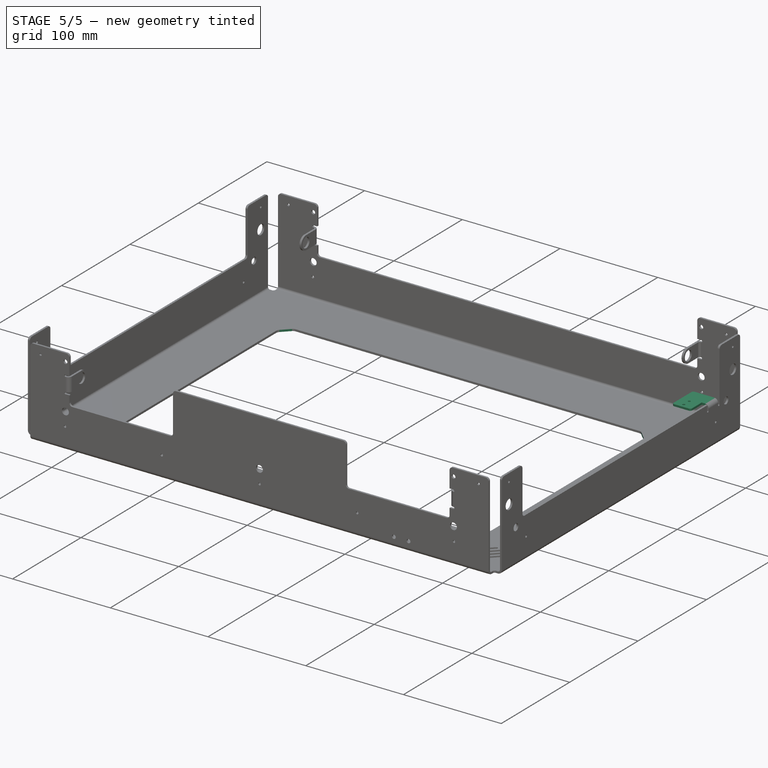
[diagram: stage 5 of 5 — iso view after this stage's code; geometry added in this stage tinted green]
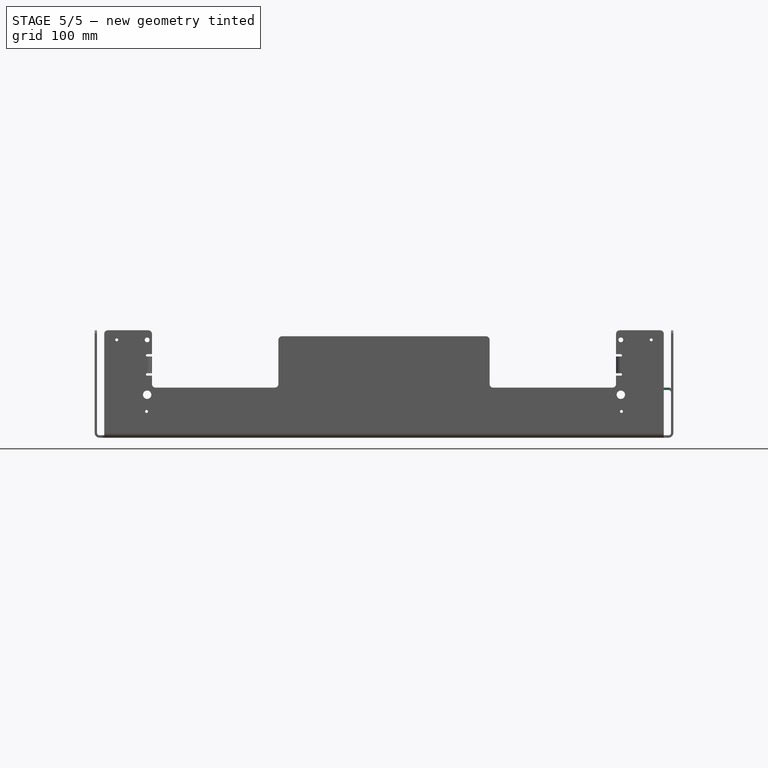
[diagram: stage 5 of 5 — front view after this stage's code; geometry added in this stage tinted green]
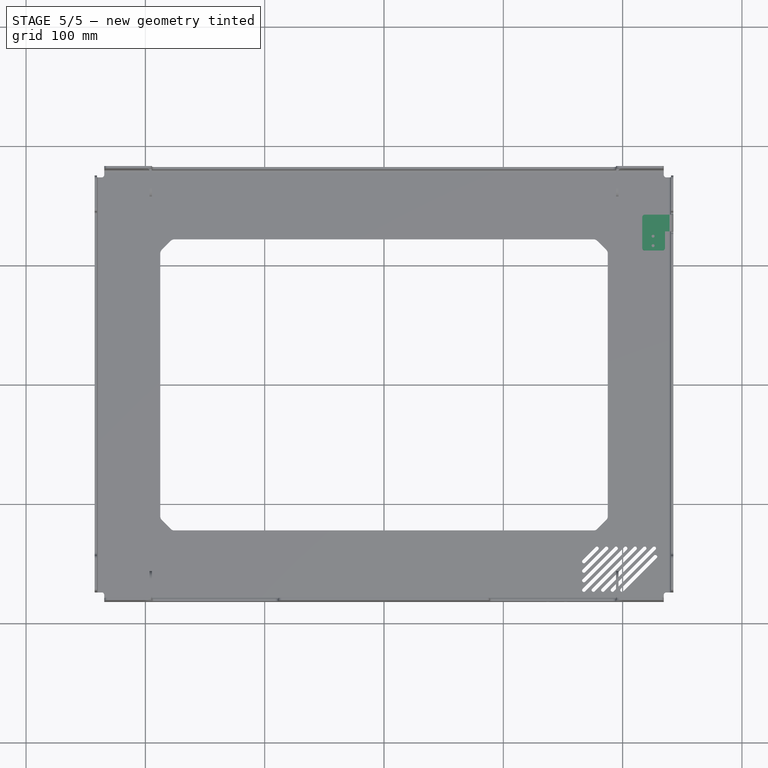
[diagram: stage 5 of 5 — top view after this stage's code; geometry added in this stage tinted green]
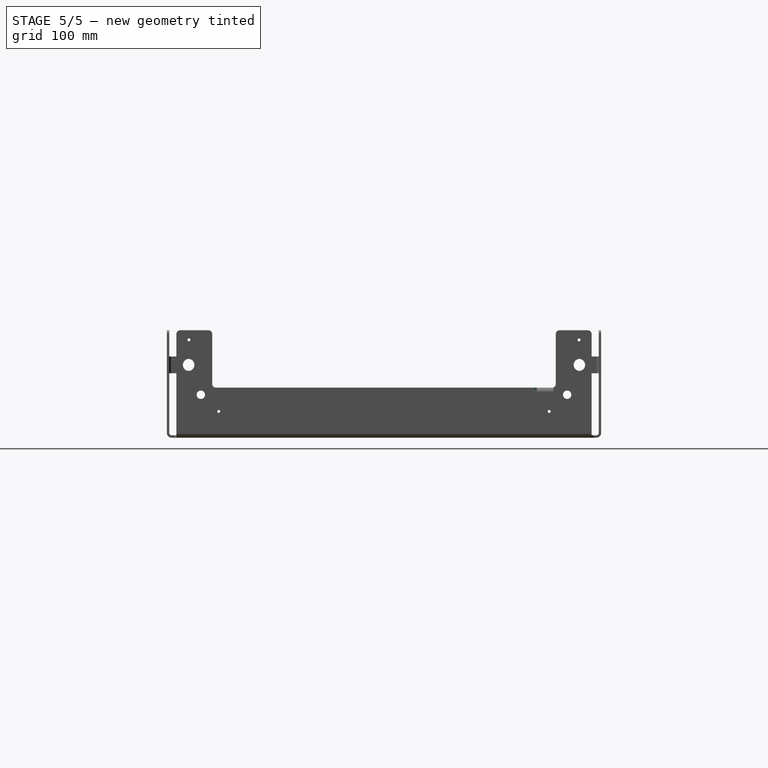
[diagram: stage 5 of 5 — right view after this stage's code; geometry added in this stage tinted green]
FEATURE [Sketcher::SketchObject] Sketch012
  ExternalGeometry = -> [Pocket005]
  Placement = pos=(0,0,42) rot=(0,0,1;0rad)
  Support = -> Pocket005 [Face212]
  sketch-geometry (10):
    g0: LineSegment StartX=242.5 StartY=142 StartZ=0 EndX=216.5 EndY=142 EndZ=0
    g1: LineSegment [constr] StartX=216.5 StartY=142 StartZ=0 EndX=216.5 EndY=128 EndZ=0
    g2: LineSegment [constr] StartX=216.5 StartY=128 StartZ=0 EndX=242.5 EndY=128 EndZ=0
    g3: LineSegment StartX=242.5 StartY=128 StartZ=0 EndX=242.5 EndY=142 EndZ=0
    g4: LineSegment StartX=216.5 StartY=142 StartZ=0 EndX=216.5 EndY=112 EndZ=0
    g5: LineSegment StartX=216.5 StartY=112 StartZ=0 EndX=235.5 EndY=112 EndZ=0
    g6: LineSegment StartX=235.5 StartY=112 StartZ=0 EndX=235.5 EndY=128 EndZ=0
    g7: LineSegment StartX=235.5 StartY=128 StartZ=0 EndX=242.5 EndY=128 EndZ=0
    g8: Circle CenterX=225.5 CenterY=124 CenterZ=0 NormalX=0 NormalY=0 NormalZ=1 Radius=1.23
    g9: Circle CenterX=225.5 CenterY=116 CenterZ=0 NormalX=0 NormalY=0 NormalZ=1 Radius=1.23
  constraints (28):
    c: Coincident(g0,g1)
    c: Coincident(g1,g2)
    c: Coincident(g2,g3)
    c: Coincident(g3,g0)
    c: Horizontal(g0)
    c: Horizontal(g2)
    c: Vertical(g1)
    c: Vertical(g3)
    c: Coincident(g0,g-3)
    c: Coincident(g2,g-3)
    c: Distance(g0) = 26
    c: Coincident(g4,g0)
    c: Vertical(g4)
    c: DistanceY(g4) = -30
    c: Coincident(g5,g4)
    c: Horizontal(g5)
    c: DistanceX(g5) = 19
    c: Coincident(g6,g5)
    c: PointOnObject(g6,g2)
    c: Vertical(g6)
    c: Coincident(g7,g6)
    c: Coincident(g7,g2)
    c: Equal(g9,g8)
    c: Distance(g9,g5) = 4
    c: Distance(g9,g8) = 8
    c: Distance(g8,g6) = 10
    c: Distance(g9,g6) = 10
    c: Radius(g9) = 1.23
FEATURE [PartDesign::Pad] Pad006
  Length = 2
  Length2 = 100
  Reversed = true
  Sketch = -> Sketch012
  Type = 0
FEATURE [PartDesign::Fillet] Fillet007
  Base = -> Pad006 [Edge633]
  Radius = 4
FEATURE [PartDesign::Fillet] Fillet008
  Base = -> Fillet007 [Edge62]
  Radius = 2
FEATURE [PartDesign::Fillet] Fillet009
  Base = -> Fillet008 [Edge112,Edge70,Edge6]
  Radius = 2
FEATURE [PartDesign::Chamfer] Chamfer
  Base = -> Fillet009 [Edge262,Edge265,Edge264,Edge263]
  Size = 10
FEATURE [PartDesign::Fillet] Fillet010
  Base = -> Chamfer [Edge60,Edge57,Edge58,Edge62,Edge67,Edge70,Edge68,Edge64]
  Radius = 4
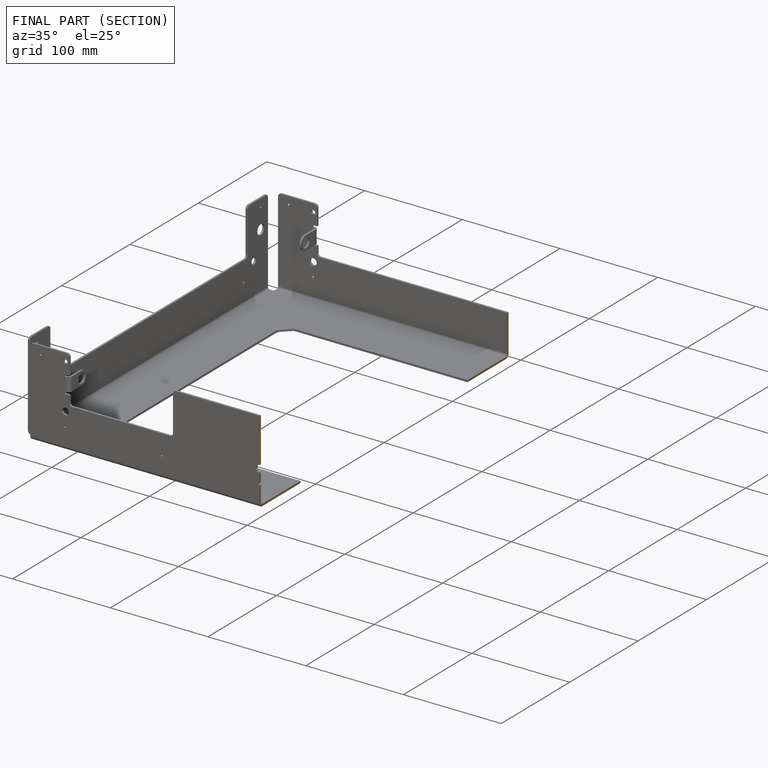
[diagram: finished part — half-section view (interior)]
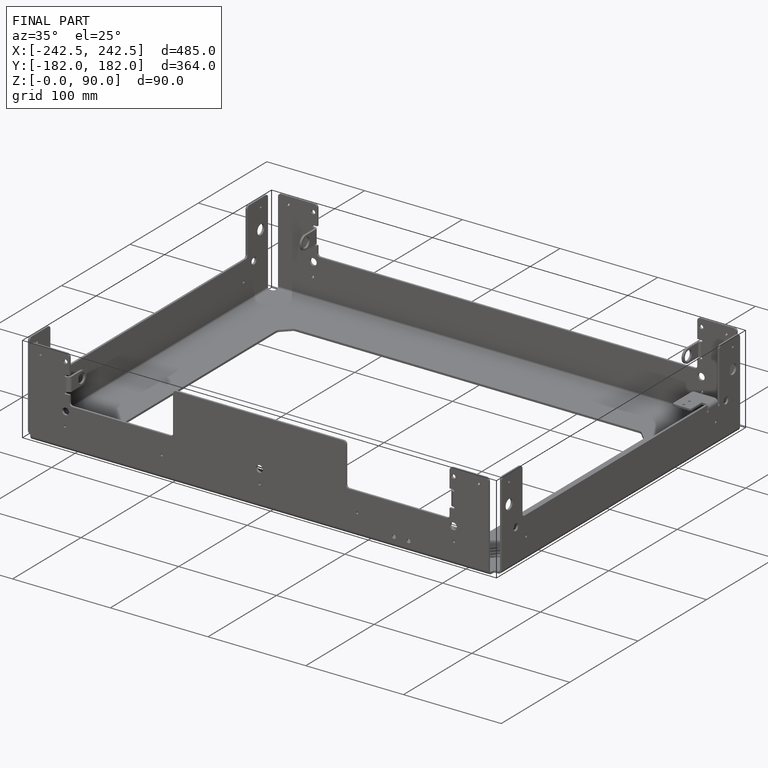
[diagram: finished part — iso view with bounding-box wireframe]
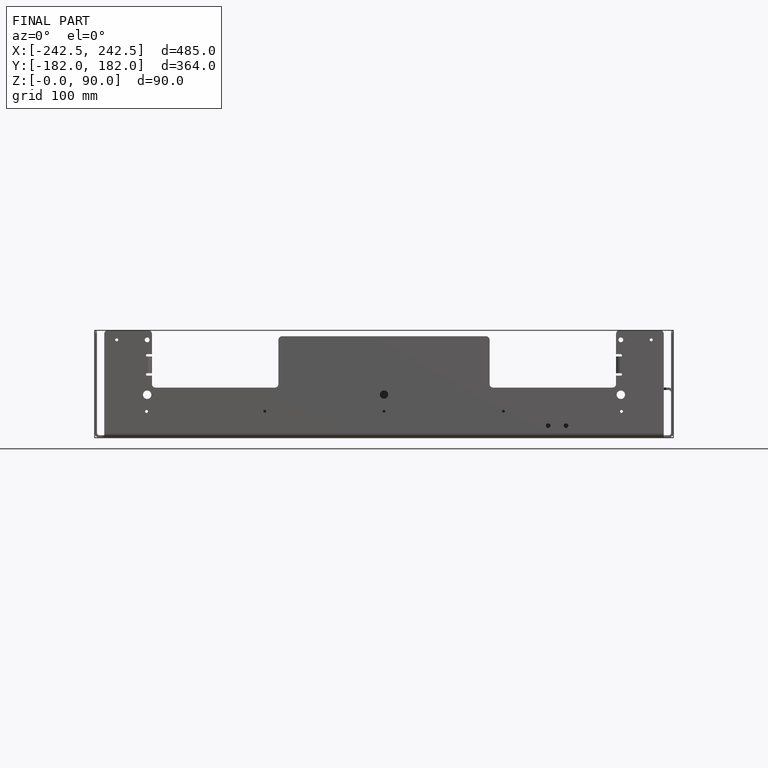
[diagram: finished part — front view with bounding-box wireframe]
